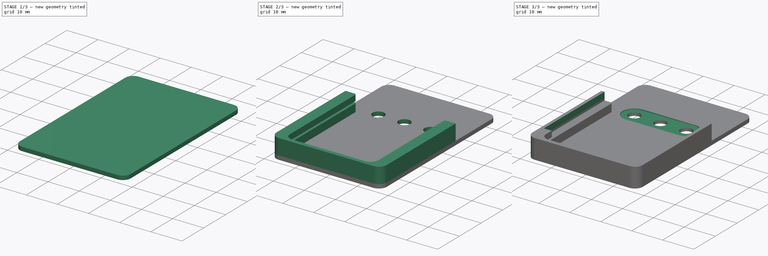
[diagram: build sequence overview — one tinted view per stage of 3, left to right]
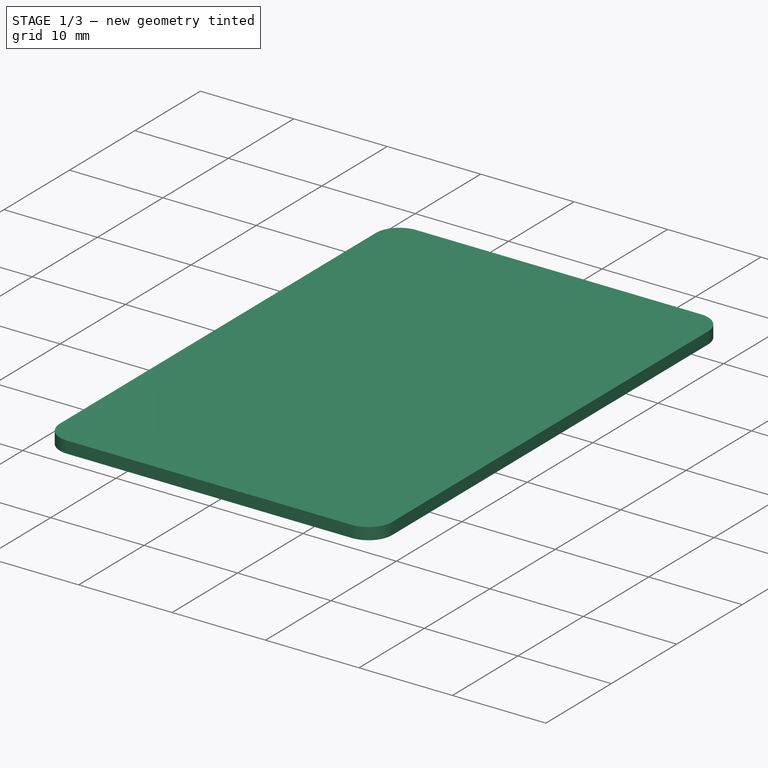
[diagram: stage 1 of 3 — iso view after this stage's code; geometry added in this stage tinted green]
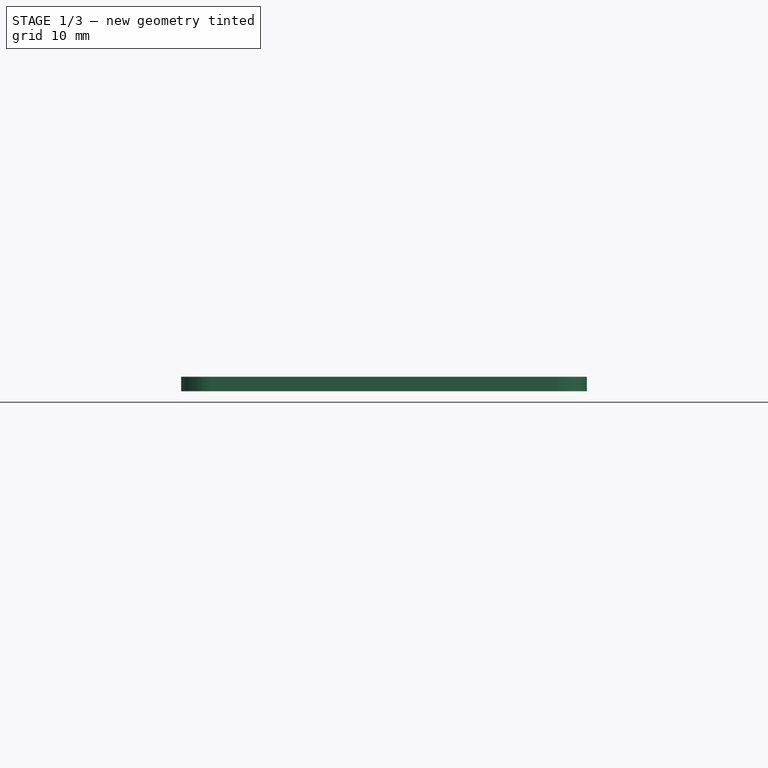
[diagram: stage 1 of 3 — front view after this stage's code; geometry added in this stage tinted green]
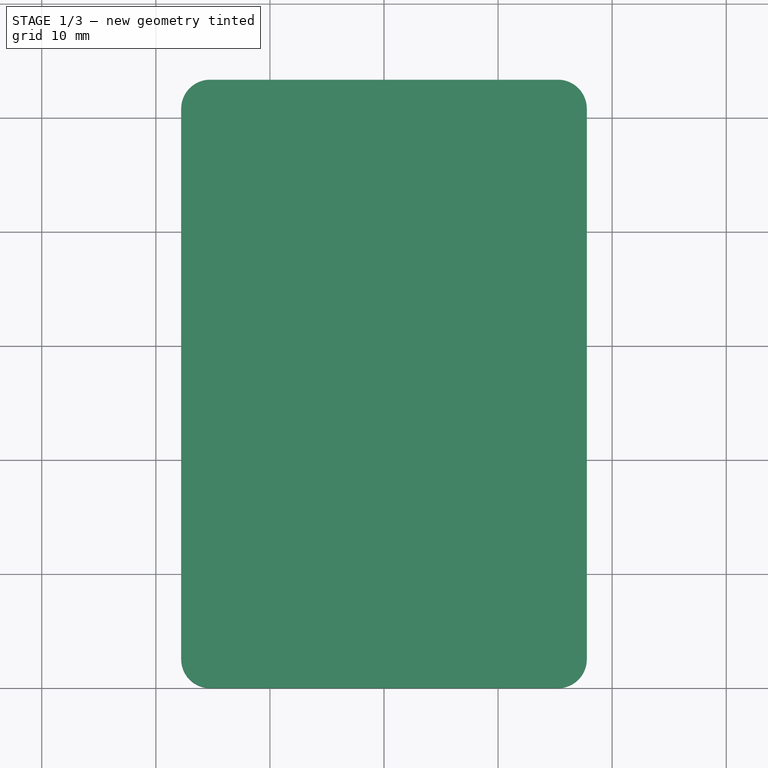
[diagram: stage 1 of 3 — top view after this stage's code; geometry added in this stage tinted green]
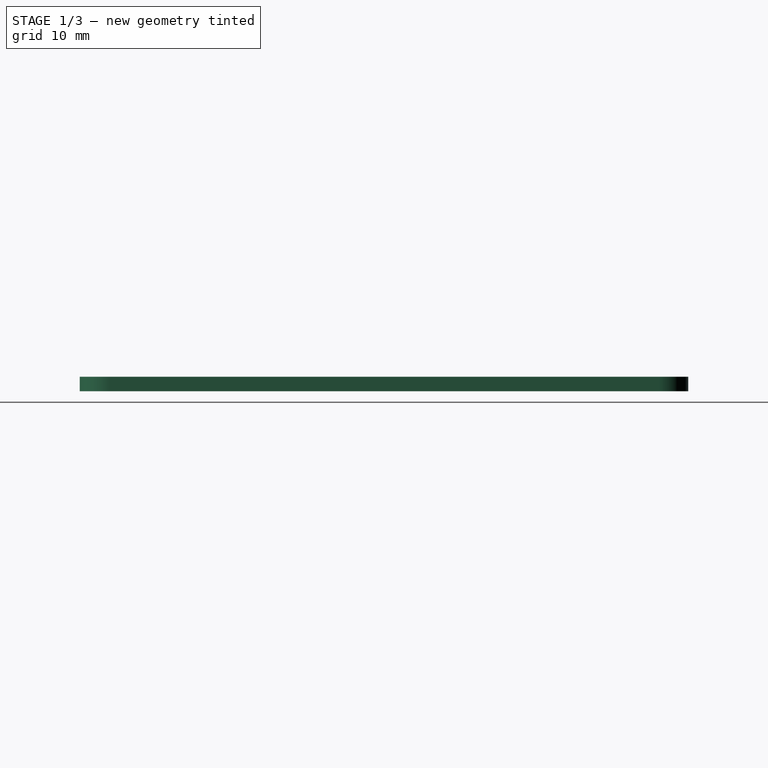
[diagram: stage 1 of 3 — right view after this stage's code; geometry added in this stage tinted green]
FCSTD DOCUMENT  (FreeCAD 0.20R29603 (Git))
Label: Front
License: All rights reserved
LicenseURL: http://en.wikipedia.org/wiki/All_rights_reserved
objects: Sketcher::SketchObject×8, PartDesign::Pocket×5, PartDesign::Pad×2, PartDesign::Body×1
note: 23 computed .brp shape members not serialized (recipe doc carries the construction recipe); baked Part::Feature solids carry a one-line shape summary decoded from their .brp

FEATURE [Sketcher::SketchObject] Sketch
  FullyConstrained = true
  MapMode = 5
  Support = -> [XY_Plane]
  sketch-geometry (8):
    g0: LineSegment StartX=-15.24 StartY=0 StartZ=0 EndX=15.24 EndY=0 EndZ=0
    g1: LineSegment StartX=17.78 StartY=2.54 StartZ=0 EndX=17.78 EndY=50.8 EndZ=0
    g2: LineSegment StartX=15.24 StartY=53.34 StartZ=0 EndX=-15.24 EndY=53.34 EndZ=0
    g3: LineSegment StartX=-17.78 StartY=2.54 StartZ=0 EndX=-17.78 EndY=50.8 EndZ=0
    g4: ArcOfCircle CenterX=-15.24 CenterY=50.8 CenterZ=0 NormalX=0 NormalY=0 NormalZ=1 AngleXU=0 Radius=2.54 StartAngle=1.5708 EndAngle=3.14159
    g5: ArcOfCircle CenterX=15.24 CenterY=50.8 CenterZ=0 NormalX=0 NormalY=0 NormalZ=1 AngleXU=0 Radius=2.54 StartAngle=0 EndAngle=1.5708
    g6: ArcOfCircle CenterX=15.24 CenterY=2.54 CenterZ=0 NormalX=0 NormalY=0 NormalZ=1 AngleXU=0 Radius=2.54 StartAngle=4.71239 EndAngle=6.28319
    g7: ArcOfCircle CenterX=-15.24 CenterY=2.54 CenterZ=0 NormalX=0 NormalY=0 NormalZ=1 AngleXU=0 Radius=2.54 StartAngle=3.14159 EndAngle=4.71239
  constraints (19):
    c: Horizontal(g0)
    c: Vertical(g1)
    c: Horizontal(g2)
    c: Vertical(g3)
    c: Tangent(g2,g4) = -1.5708
    c: Tangent(g3,g4) = 1.5708
    c: Tangent(g1,g5) = -1.5708
    c: Tangent(g2,g5) = -1.5708
    c: Tangent(g0,g6) = -1.5708
    c: Tangent(g1,g6) = -1.5708
    c: Tangent(g0,g7) = -1.5708
    c: Tangent(g3,g7) = 1.5708
    c: DistanceX(g3,g1) = 35.56
    c: DistanceY(g0,g2) = 53.34
    c: Symmetric(g3,g1,g-2)
    c: Equal(g5,g4)
    c: Equal(g5,g6)
    c: Radius(g5) = 2.54
    c: Horizontal(g0,g-1)
FEATURE [PartDesign::Pad] Pad
  Direction = (0,0,1)
  Length = 1.27
  Length2 = 10
  Profile = -> Sketch
  ReferenceAxis = -> Sketch [N_Axis]
  Type = 0
FEATURE [Sketcher::SketchObject] Sketch001
  FullyConstrained = true
  MapMode = 5
  Placement = pos=(0,0,0) rot=(1,0,0;3.14159rad)
  Support = -> [Pad]
  sketch-geometry (8):
    g0: LineSegment StartX=-12.7 StartY=-2.54 StartZ=0 EndX=12.7 EndY=-2.54 EndZ=0
    g1: LineSegment StartX=13.97 StartY=-3.81 StartZ=0 EndX=13.97 EndY=-31.75 EndZ=0
    g2: LineSegment StartX=12.7 StartY=-33.02 StartZ=0 EndX=-12.7 EndY=-33.02 EndZ=0
    g3: LineSegment StartX=-13.97 StartY=-3.81 StartZ=0 EndX=-13.97 EndY=-31.75 EndZ=0
    g4: ArcOfCircle CenterX=-12.7 CenterY=-3.81 CenterZ=0 NormalX=0 NormalY=0 NormalZ=1 AngleXU=0 Radius=1.27 StartAngle=1.5708 EndAngle=3.14159
    g5: ArcOfCircle CenterX=12.7 CenterY=-3.81 CenterZ=0 NormalX=0 NormalY=0 NormalZ=1 AngleXU=0 Radius=1.27 StartAngle=0 EndAngle=1.5708
    g6: ArcOfCircle CenterX=12.7 CenterY=-31.75 CenterZ=0 NormalX=0 NormalY=0 NormalZ=1 AngleXU=0 Radius=1.27 StartAngle=4.71239 EndAngle=6.28319
    g7: ArcOfCircle CenterX=-12.7 CenterY=-31.75 CenterZ=0 NormalX=0 NormalY=0 NormalZ=1 AngleXU=0 Radius=1.27 StartAngle=3.14159 EndAngle=4.71239
  constraints (19):
    c: Vertical(g1)
    c: Horizontal(g2)
    c: Vertical(g3)
    c: Tangent(g0,g4) = 1.5708
    c: Tangent(g3,g4) = -1.5708
    c: Tangent(g0,g5) = 1.5708
    c: Tangent(g1,g5) = 1.5708
    c: Tangent(g1,g6) = 1.5708
    c: Tangent(g2,g6) = 1.5708
    c: Tangent(g2,g7) = 1.5708
    c: Tangent(g3,g7) = -1.5708
    c: DistanceY(g2,g0) = 30.48
    c: DistanceX(g3,g1) = 27.94
    c: Equal(g5,g4)
    c: Equal(g7,g4)
    c: Equal(g7,g6)
    c: Radius(g5) = 1.27
    c: Symmetric(g3,g1,g-2)
    c: DistanceY(g0,g-1) = 2.54
FEATURE [PartDesign::Pocket] Pocket
  BaseFeature = -> Pad
  Direction = (0,0,1)
  Length = 0.635
  Length2 = 5
  Profile = -> Sketch001
  ReferenceAxis = -> Sketch001 [N_Axis]
  Type = 0
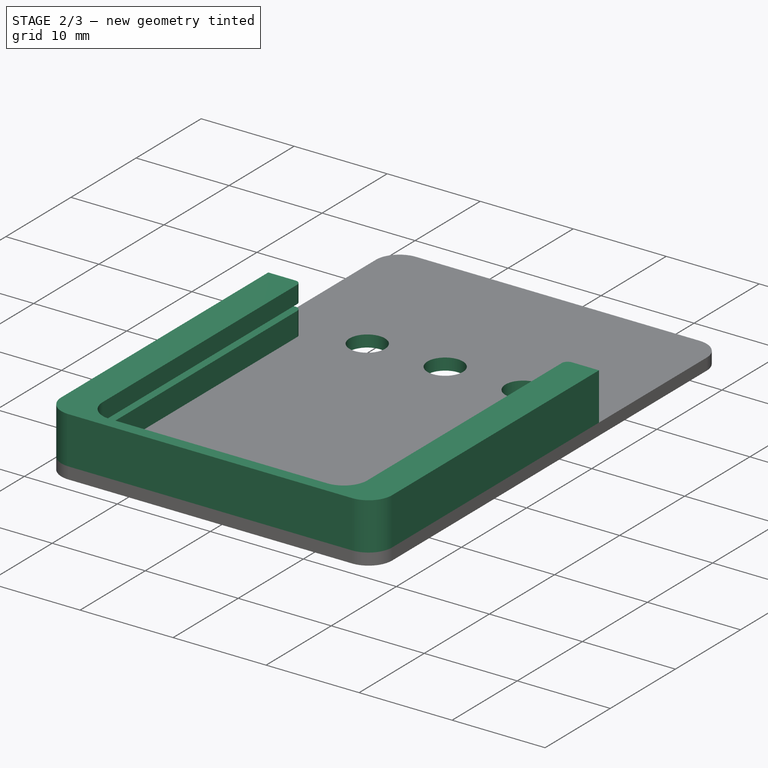
[diagram: stage 2 of 3 — iso view after this stage's code; geometry added in this stage tinted green]
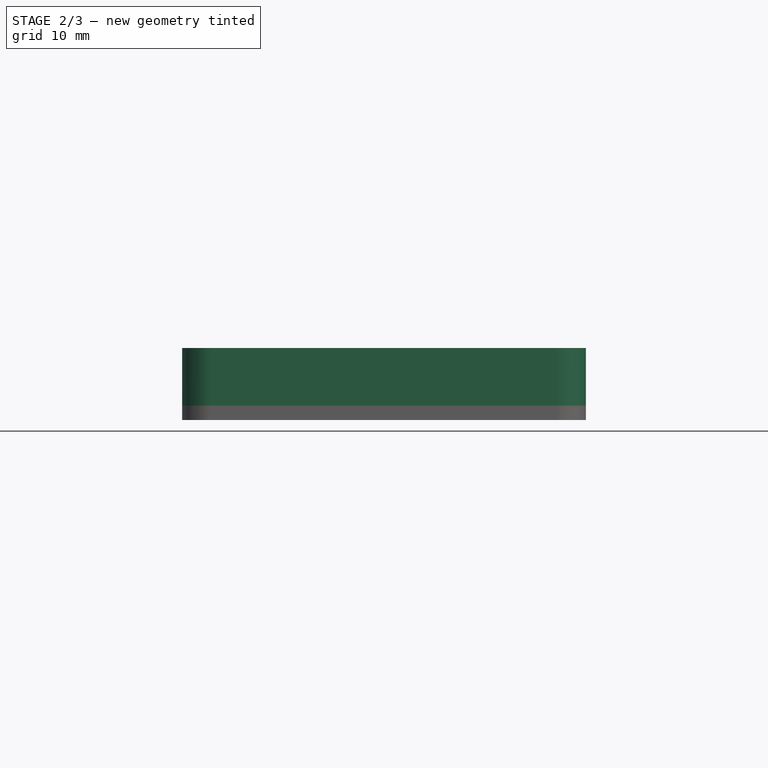
[diagram: stage 2 of 3 — front view after this stage's code; geometry added in this stage tinted green]
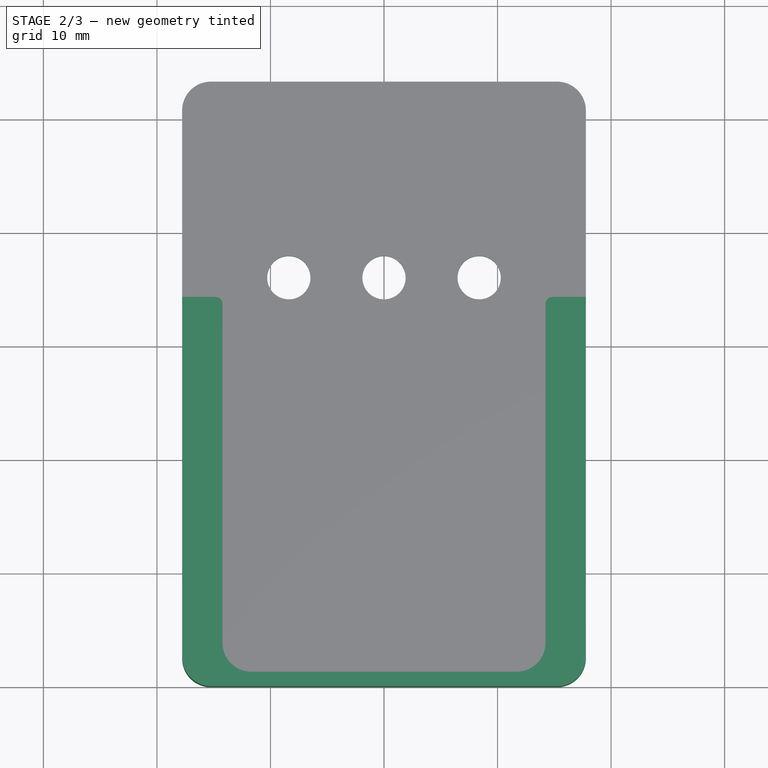
[diagram: stage 2 of 3 — top view after this stage's code; geometry added in this stage tinted green]
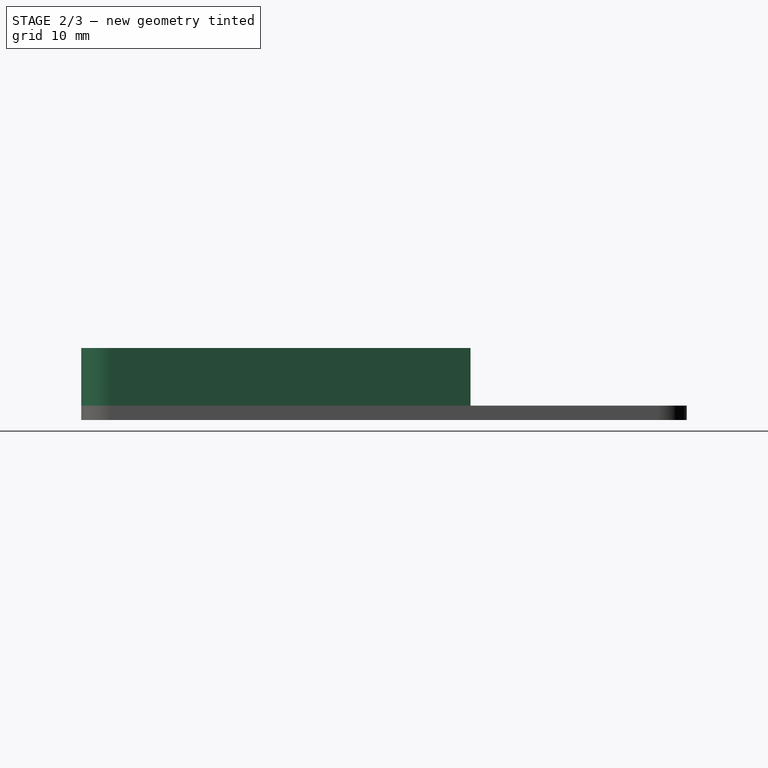
[diagram: stage 2 of 3 — right view after this stage's code; geometry added in this stage tinted green]
FEATURE [Sketcher::SketchObject] Sketch002
  FullyConstrained = true
  MapMode = 5
  Placement = pos=(0,0,0) rot=(1,0,0;3.14159rad)
  Support = -> [Pocket]
  sketch-geometry (3):
    g0: Circle CenterX=0 CenterY=-36.068 CenterZ=0 NormalX=0 NormalY=0 NormalZ=1 AngleXU=0 Radius=1.905
    g1: Circle CenterX=8.382 CenterY=-36.068 CenterZ=0 NormalX=0 NormalY=0 NormalZ=1 AngleXU=0 Radius=1.905
    g2: Circle CenterX=-8.382 CenterY=-36.068 CenterZ=0 NormalX=0 NormalY=0 NormalZ=1 AngleXU=0 Radius=1.905
  constraints (9):
    c: PointOnObject(g0,g-2)
    c: Horizontal(g2,g0)
    c: Horizontal(g1,g0)
    c: Equal(g1,g0)
    c: Equal(g2,g0)
    c: DistanceX(g2,g0) = 8.382
    c: DistanceX(g0,g1) = 8.382
    c: DistanceY(g1,g-1) = 36.068
    c: Diameter(g1) = 3.81
FEATURE [PartDesign::Pocket] Pocket001
  BaseFeature = -> Pocket
  Direction = (0,0,1)
  Length = 5.08
  Length2 = 5
  Profile = -> Sketch002
  ReferenceAxis = -> Sketch002 [N_Axis]
  Type = 0
FEATURE [Sketcher::SketchObject] Sketch003
  FullyConstrained = true
  MapMode = 5
  Placement = pos=(0,0,0) rot=(1,0,0;3.14159rad)
  Support = -> [Pocket001]
FEATURE [Sketcher::SketchObject] Sketch004
  FullyConstrained = true
  MapMode = 5
  Placement = pos=(0,0,1.27) rot=(0,0,1;0rad)
  Support = -> [Pocket001]
  sketch-geometry (14):
    g0: LineSegment StartX=-15.24 StartY=0 StartZ=0 EndX=15.24 EndY=0 EndZ=0
    g1: LineSegment StartX=-17.78 StartY=2.54 StartZ=0 EndX=-17.78 EndY=34.29 EndZ=0
    g2: LineSegment StartX=17.78 StartY=34.29 StartZ=0 EndX=17.78 EndY=2.54 EndZ=0
    g3: LineSegment StartX=17.78 StartY=34.29 StartZ=0 EndX=14.859 EndY=34.29 EndZ=0
    g4: LineSegment StartX=14.224 StartY=33.655 StartZ=0 EndX=14.224 EndY=3.81 EndZ=0
    g5: LineSegment StartX=11.684 StartY=1.27 StartZ=0 EndX=-11.684 EndY=1.27 EndZ=0
    g6: LineSegment StartX=-14.224 StartY=3.81 StartZ=0 EndX=-14.224 EndY=33.655 EndZ=0
    g7: LineSegment StartX=-17.78 StartY=34.29 StartZ=0 EndX=-14.859 EndY=34.29 EndZ=0
    g8: ArcOfCircle CenterX=14.859 CenterY=33.655 CenterZ=0 NormalX=0 NormalY=0 NormalZ=1 AngleXU=0 Radius=0.635 StartAngle=1.5708 EndAngle=3.14159
    g9: ArcOfCircle CenterX=-14.859 CenterY=33.655 CenterZ=0 NormalX=0 NormalY=0 NormalZ=1 AngleXU=0 Radius=0.635 StartAngle=-5.3e-15 EndAngle=1.5708
    g10: ArcOfCircle CenterX=-15.24 CenterY=2.54 CenterZ=0 NormalX=0 NormalY=0 NormalZ=1 AngleXU=0 Radius=2.54 StartAngle=3.14159 EndAngle=4.71239
    g11: ArcOfCircle CenterX=-11.684 CenterY=3.81 CenterZ=0 NormalX=0 NormalY=0 NormalZ=1 AngleXU=0 Radius=2.54 StartAngle=3.14159 EndAngle=4.71239
    g12: ArcOfCircle CenterX=11.684 CenterY=3.81 CenterZ=0 NormalX=0 NormalY=0 NormalZ=1 AngleXU=0 Radius=2.54 StartAngle=4.71239 EndAngle=6.28319
    g13: ArcOfCircle CenterX=15.24 CenterY=2.54 CenterZ=0 NormalX=0 NormalY=0 NormalZ=1 AngleXU=0 Radius=2.54 StartAngle=4.71239 EndAngle=6.28319
  constraints (35):
    c: Vertical(g1)
    c: Vertical(g2)
    c: Vertical(g4)
    c: Horizontal(g5)
    c: Vertical(g6)
    c: Horizontal(g3)
    c: Horizontal(g7)
    c: Equal(g7,g3)
    c: Tangent(g3,g8) = -1.5708
    c: Tangent(g4,g8) = -1.5708
    c: Tangent(g6,g9) = -1.5708
    c: Tangent(g7,g9) = 1.5708
    c: Tangent(g0,g10) = -1.5708
    c: Tangent(g1,g10) = 1.5708
    c: Tangent(g5,g11) = 1.5708
    c: Tangent(g6,g11) = 1.5708
    c: Tangent(g4,g12) = 1.5708
    c: Tangent(g5,g12) = 1.5708
    c: Tangent(g0,g13) = -1.5708
    c: Tangent(g2,g13) = 1.5708
    c: DistanceX(g1,g2) = 35.56
    c: Symmetric(g1,g2,g-2)
    c: Equal(g8,g9)
    c: Coincident(g3,g2)
    c: Horizontal(g0)
    c: Radius(g13) = 2.54
    c: Horizontal(g0,g-1)
    c: DistanceX(g4,g2) = 3.556
    c: Radius(g8) = 0.635
    c: Radius(g12) = 2.54
    c: Equal(g12,g11)
    c: DistanceY(g0,g5) = 1.27
    c: Coincident(g7,g1)
    c: DistanceY(g0,g1) = 34.29
    c: Horizontal(g7,g3)
FEATURE [PartDesign::Pad] Pad001
  BaseFeature = -> Pocket001
  Direction = (0,0,1)
  Length = 5.08
  Length2 = 10
  Profile = -> Sketch004
  ReferenceAxis = -> Sketch004 [N_Axis]
  Type = 0
FEATURE [Sketcher::SketchObject] Sketch005
  FullyConstrained = true
  MapMode = 5
  Placement = pos=(0,34.29,0) rot=(0,0.707107,0.707107;3.14159rad)
  Support = -> [Pad001]
  sketch-geometry (4):
    g0: LineSegment StartX=-16.764 StartY=4.4704 StartZ=0 EndX=-16.764 EndY=3.81 EndZ=0
    g1: LineSegment StartX=-16.764 StartY=3.81 StartZ=0 EndX=16.764 EndY=3.81 EndZ=0
    g2: LineSegment StartX=16.764 StartY=3.81 StartZ=0 EndX=16.764 EndY=4.4704 EndZ=0
    g3: LineSegment StartX=-16.764 StartY=4.4704 StartZ=0 EndX=16.764 EndY=4.4704 EndZ=0
  constraints (11):
    c: Vertical(g0)
    c: Coincident(g1,g0)
    c: Horizontal(g1)
    c: Coincident(g2,g1)
    c: Vertical(g2)
    c: Coincident(g3,g0)
    c: DistanceY(g2,g2) = 0.6604
    c: DistanceX(g3,g3) = 33.528
    c: Symmetric(g0,g3,g-2)
    c: Coincident(g3,g2)
    c: DistanceY(g-1,g0) = 3.81
FEATURE [PartDesign::Pocket] Pocket002
  BaseFeature = -> Pad001
  Direction = (0,-1,2e-16)
  Length = 0
  Length2 = 5
  Profile = -> Sketch005
  ReferenceAxis = -> Sketch005 [N_Axis]
  Type = 3
  UpToFace = -> Pad001 [Face31]
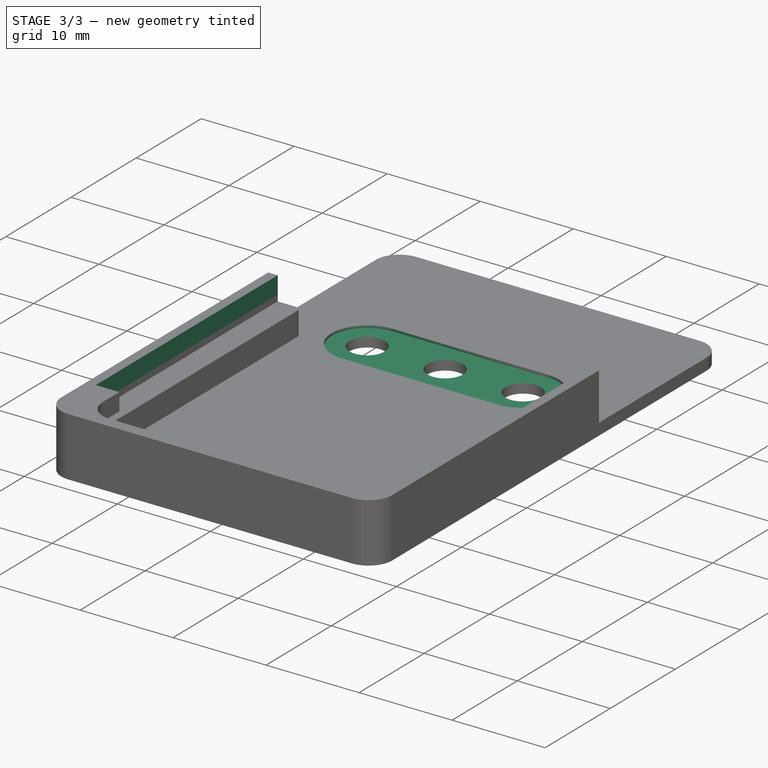
[diagram: stage 3 of 3 — iso view after this stage's code; geometry added in this stage tinted green]
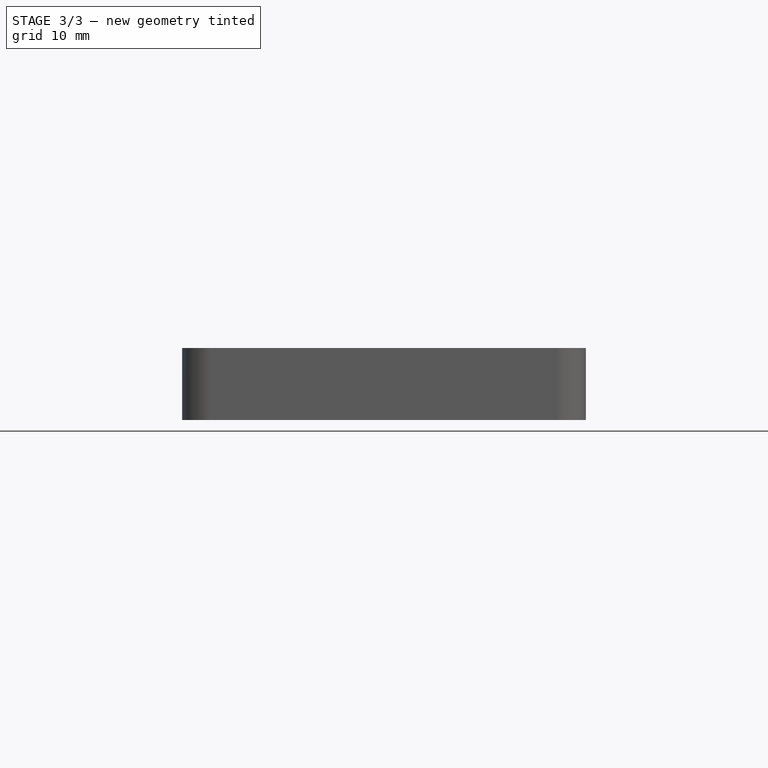
[diagram: stage 3 of 3 — front view after this stage's code; geometry added in this stage tinted green]
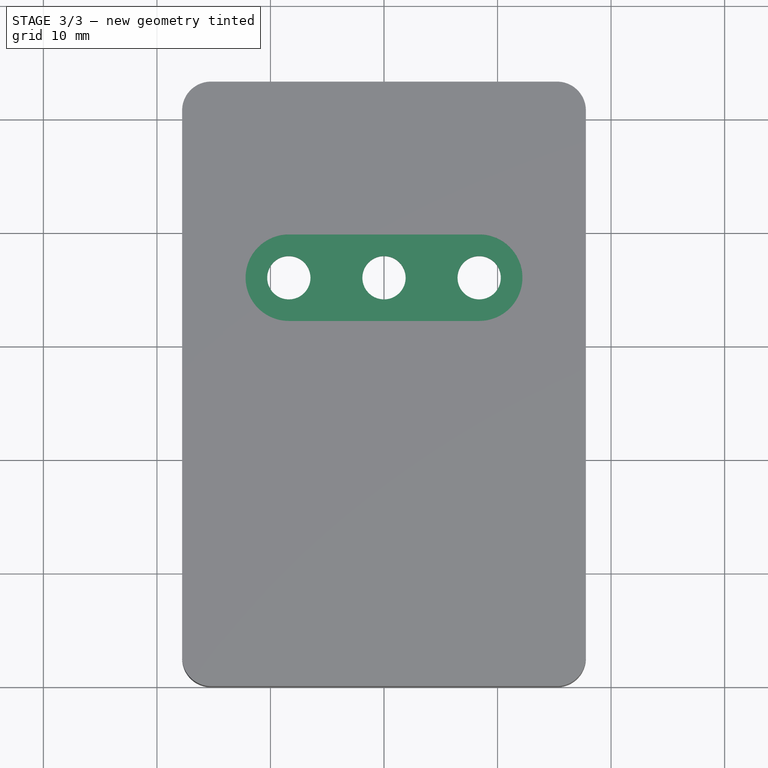
[diagram: stage 3 of 3 — top view after this stage's code; geometry added in this stage tinted green]
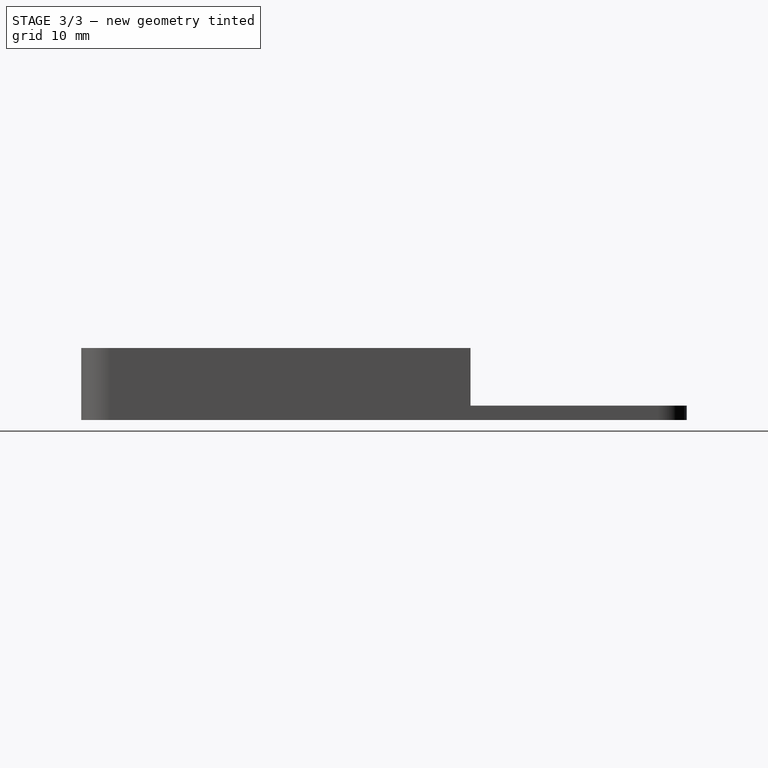
[diagram: stage 3 of 3 — right view after this stage's code; geometry added in this stage tinted green]
FEATURE [Sketcher::SketchObject] Sketch006
  FullyConstrained = true
  MapMode = 5
  Placement = pos=(0,0,6.35) rot=(0,0,1;0rad)
  Support = -> [Pocket002]
  sketch-geometry (4):
    g0: LineSegment StartX=-16.764 StartY=34.29 StartZ=0 EndX=16.764 EndY=34.29 EndZ=0
    g1: LineSegment StartX=16.764 StartY=34.29 StartZ=0 EndX=16.764 EndY=6.35 EndZ=0
    g2: LineSegment StartX=16.764 StartY=6.35 StartZ=0 EndX=-16.764 EndY=6.35 EndZ=0
    g3: LineSegment StartX=-16.764 StartY=6.35 StartZ=0 EndX=-16.764 EndY=34.29 EndZ=0
  constraints (11):
    c: Coincident(g0,g1)
    c: Coincident(g1,g2)
    c: Coincident(g2,g3)
    c: Coincident(g3,g0)
    c: Horizontal(g2)
    c: Vertical(g1)
    c: Vertical(g3)
    c: Symmetric(g0,g0,g-2)
    c: DistanceY(g1,g1) = 27.94
    c: DistanceX(g2,g2) = 33.528
    c: DistanceY(g-1,g2) = 6.35
FEATURE [PartDesign::Pocket] Pocket003
  BaseFeature = -> Pocket002
  Direction = (0,0,-1)
  Length = 0
  Length2 = 5
  Profile = -> Sketch006
  ReferenceAxis = -> Sketch006 [N_Axis]
  Type = 3
  UpToFace = -> Pocket002 [Face45]
FEATURE [Sketcher::SketchObject] Sketch007
  FullyConstrained = true
  MapMode = 5
  Placement = pos=(0,0,1.27) rot=(0,0,1;0rad)
  Support = -> [Pocket003]
  sketch-geometry (4):
    g0: ArcOfCircle CenterX=-8.382 CenterY=36.068 CenterZ=0 NormalX=0 NormalY=0 NormalZ=1 AngleXU=0 Radius=3.81 StartAngle=1.5708 EndAngle=4.71239
    g1: ArcOfCircle CenterX=8.382 CenterY=36.068 CenterZ=0 NormalX=0 NormalY=0 NormalZ=1 AngleXU=0 Radius=3.81 StartAngle=4.71239 EndAngle=7.85398
    g2: LineSegment StartX=-8.382 StartY=32.258 StartZ=0 EndX=8.382 EndY=32.258 EndZ=0
    g3: LineSegment StartX=8.382 StartY=39.878 StartZ=0 EndX=-8.382 EndY=39.878 EndZ=0
  constraints (9):
    c: Tangent(g0,g2) = -1.5708
    c: Tangent(g2,g1) = -1.5708
    c: Tangent(g1,g3) = -1.5708
    c: Tangent(g3,g0) = -1.5708
    c: Equal(g0,g1)
    c: Radius(g1) = 3.81
    c: DistanceY(g-1,g1) = 36.068
    c: Symmetric(g0,g1,g-2)
    c: DistanceX(g3,g3) = 16.764
FEATURE [PartDesign::Pocket] Pocket004
  BaseFeature = -> Pocket003
  Direction = (0,0,-1)
  Length = 0.254
  Length2 = 5
  Profile = -> Sketch007
  ReferenceAxis = -> Sketch007 [N_Axis]
  Type = 0
FEATURE [PartDesign::Body] Body
  Group = -> [Sketch,Pad,Sketch001,Pocket,Sketch002,Pocket001,Sketch003,Sketch004,Pad001,Sketch005,Pocket002,Sketch006,Pocket003,Sketch007,Pocket004]
  Origin = -> Origin
  Tip = -> Pocket004
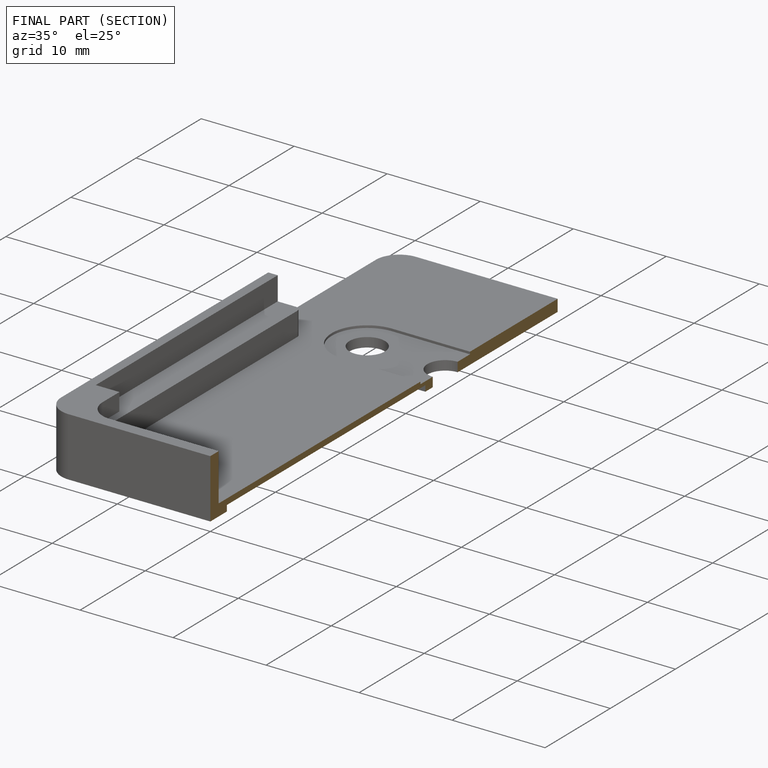
[diagram: finished part — half-section view (interior)]
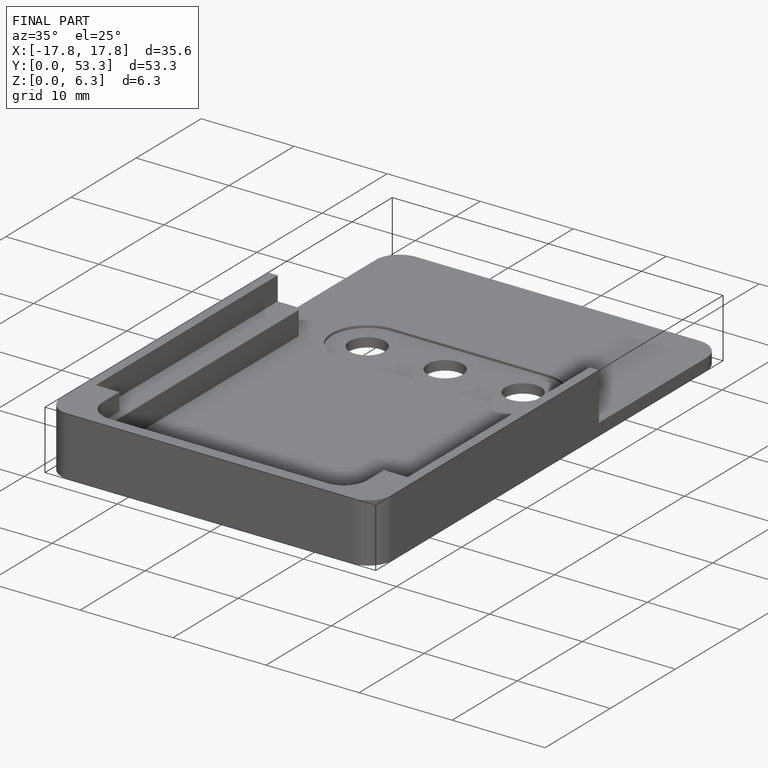
[diagram: finished part — iso view with bounding-box wireframe]
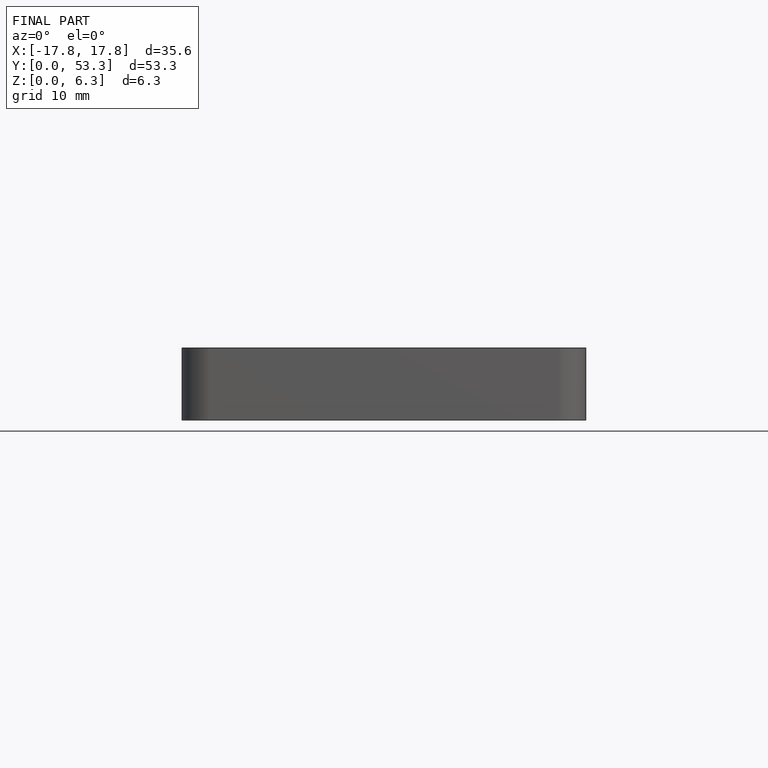
[diagram: finished part — front view with bounding-box wireframe]
